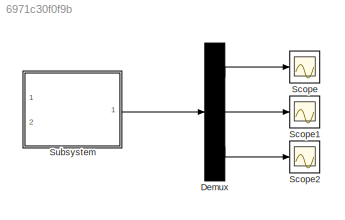
MODEL slx_6971c30f0f9b
KIND model
CONFIG AbsTol = auto
CONFIG EnableMultiTasking = off
CONFIG FixedStep = auto
CONFIG MaxStep = auto
CONFIG MinStep = auto
CONFIG RelTol = 1e-3
CONFIG SampleTimeConstraint = Unconstrained
CONFIG Solver = VariableStepAuto
CONFIG SolverName = VariableStepAuto
CONFIG StartTime = 0.0
CONFIG StopTime = 10.0
BLOCK [Demux] Demux
  Outputs = 3
  Ports = [1, 3]
BLOCK [Scope] Scope
  Floating = off
  NumInputPorts = 1
  Ports = [1]
  ScopeSpecificationString = Simulink.scopes.TimeScopeBlockCfg('CurrentConfiguration', extmgr.ConfigurationSet(extmgr.Configuration('Core','General UI',true),extmgr.Configuration('Core','Source UI',true),extmgr.Configuration('Sources','WiredSimulink',true),extmgr.Configuration('Visuals','Time Domain',true),extmgr.Configuration('Tools','Plot Navigation',true),extmgr.Configuration('Tools','Measurements',true)),'Version','2020a'...<+1ch>
BLOCK [Scope] Scope1
  Floating = off
  NumInputPorts = 1
  Ports = [1]
  ScopeSpecificationString = Simulink.scopes.TimeScopeBlockCfg('CurrentConfiguration', extmgr.ConfigurationSet(extmgr.Configuration('Core','General UI',true),extmgr.Configuration('Core','Source UI',true),extmgr.Configuration('Sources','WiredSimulink',true,'DataLoggingVariableName','ScopeData1'),extmgr.Configuration('Visuals','Time Domain',true),extmgr.Configuration('Tools','Plot Navigation',true),extmgr.Configuration('Tools',...<+40ch>
BLOCK [Scope] Scope2
  Floating = off
  NumInputPorts = 1
  Ports = [1]
  ScopeSpecificationString = Simulink.scopes.TimeScopeBlockCfg('CurrentConfiguration', extmgr.ConfigurationSet(extmgr.Configuration('Core','General UI',true),extmgr.Configuration('Core','Source UI',true),extmgr.Configuration('Sources','WiredSimulink',true,'DataLoggingVariableName','ScopeData2'),extmgr.Configuration('Visuals','Time Domain',true),extmgr.Configuration('Tools','Plot Navigation',true),extmgr.Configuration('Tools',...<+40ch>
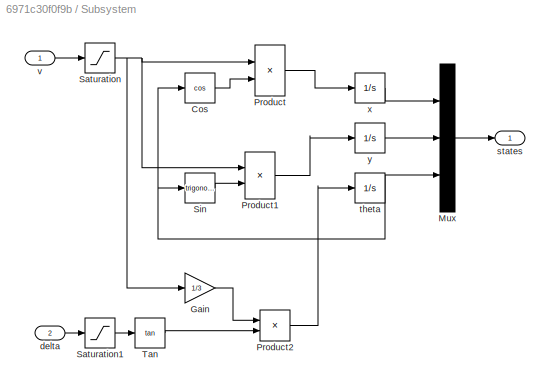
BLOCK [SubSystem] Subsystem
  Ports = [2, 1]
  RequestExecContextInheritance = off
BLOCK [Trigonometry] Subsystem/Cos
  Operator = cos
  Ports = [1, 1]
BLOCK [Gain] Subsystem/Gain
  Gain = 1/3
BLOCK [Mux] Subsystem/Mux
  DisplayOption = bar
  Inputs = 3
  Ports = [3, 1]
BLOCK [Product] Subsystem/Product
  Ports = [2, 1]
BLOCK [Product] Subsystem/Product1
  Ports = [2, 1]
BLOCK [Product] Subsystem/Product2
  Ports = [2, 1]
BLOCK [Saturate] Subsystem/Saturation
  LowerLimit = 0
  UpperLimit = 12
BLOCK [Saturate] Subsystem/Saturation1
  LowerLimit = -pi/4
  UpperLimit = pi/4
BLOCK [Trigonometry] Subsystem/Sin
  Ports = [1, 1]
BLOCK [Trigonometry] Subsystem/Tan
  Operator = tan
  Ports = [1, 1]
BLOCK [Inport] Subsystem/delta
  Port = 2
BLOCK [Outport] Subsystem/states
BLOCK [Integrator] Subsystem/theta
  Ports = [1, 1]
BLOCK [Inport] Subsystem/v
BLOCK [Integrator] Subsystem/x
  Ports = [1, 1]
BLOCK [Integrator] Subsystem/y
  InitialCondition = -3
  Ports = [1, 1]
LINE Demux:1 -> Scope:1
LINE Demux:2 -> Scope1:1
LINE Demux:3 -> Scope2:1
LINE Subsystem/Cos:1 -> Subsystem/Product:2
LINE Subsystem/Gain:1 -> Subsystem/Product2:1
LINE Subsystem/Mux:1 -> Subsystem/states:1
LINE Subsystem/Product1:1 -> Subsystem/y:1
LINE Subsystem/Product2:1 -> Subsystem/theta:1
LINE Subsystem/Product:1 -> Subsystem/x:1
LINE Subsystem/Saturation1:1 -> Subsystem/Tan:1
NET Subsystem/Saturation:1 -> Subsystem/Gain:1, Subsystem/Product1:1, Subsystem/Product:1
LINE Subsystem/Sin:1 -> Subsystem/Product1:2
LINE Subsystem/Tan:1 -> Subsystem/Product2:2
LINE Subsystem/delta:1 -> Subsystem/Saturation1:1
NET Subsystem/theta:1 -> Subsystem/Cos:1, Subsystem/Mux:3, Subsystem/Sin:1
LINE Subsystem/v:1 -> Subsystem/Saturation:1
LINE Subsystem/x:1 -> Subsystem/Mux:1
LINE Subsystem/y:1 -> Subsystem/Mux:2
LINE Subsystem:1 -> Demux:1
note: NET lines group one-source signal fan-out (src -> all destinations, sorted); 1:1 wires keep LINE
